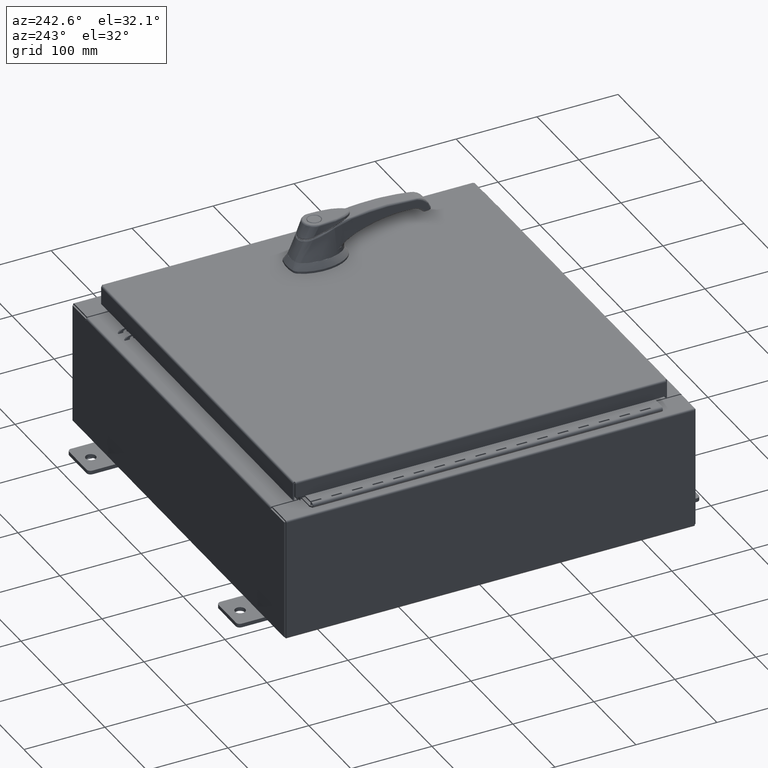
[diagram: clean part render]
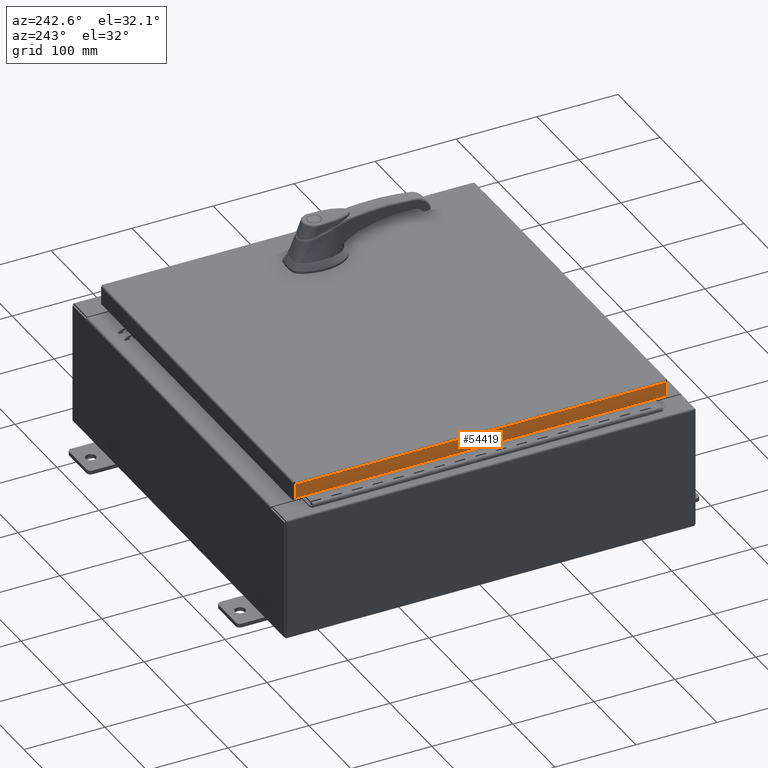
[diagram: same view with one face highlighted and labeled with its STEP entity id]
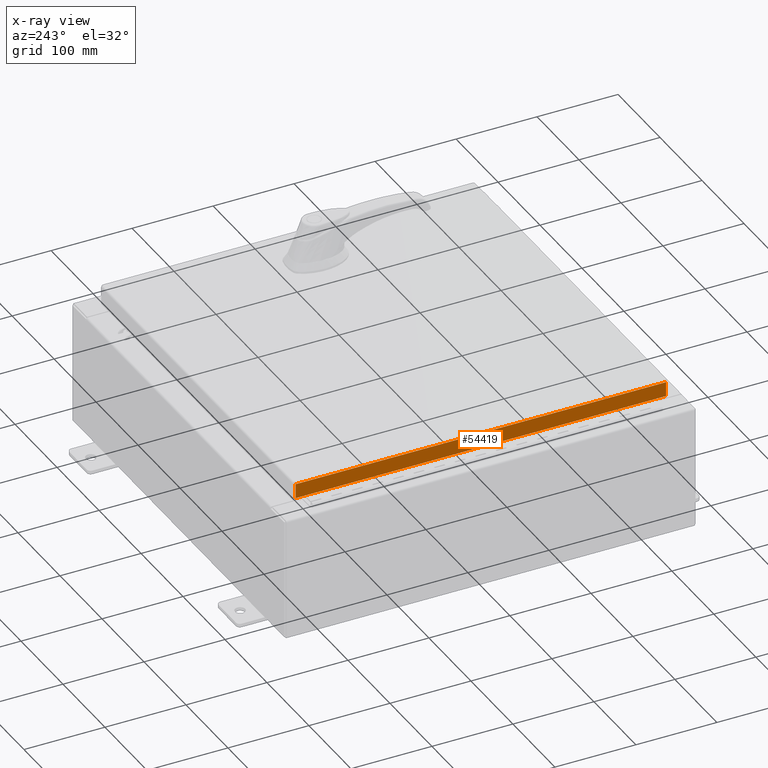
[diagram: x-ray of the same camera — body ghosted, the highlighted face saturated]
A machine part, auxiliary view. The second image highlights one B-rep face of the part: STEP entity #54419.
The next image is the same camera in x-ray: the body ghosted, the highlighted face saturated — about 0% of this face is hidden behind the body in this view.
In plain terms, the highlighted planar face has unit normal (1, 0, -0).
Its self-contained STEP definition (entity closure, byte-faithful):
#946 = LINE ( 'NONE', #69681, #20729 ) ;
#1177 = DIRECTION ( 'NONE',  ( -3.034122441942816500E-015, 0.0000000000000000000, -1.000000000000000000 ) ) ;
#3705 = CARTESIAN_POINT ( 'NONE',  ( -9.077999999999999400, 9.005157864376268900, 9.068725845758093100E-014 ) ) ;
#7907 = EDGE_CURVE ( 'NONE', #100922, #86004, #78233, .T. ) ;
#10510 = ORIENTED_EDGE ( 'NONE', *, *, #78984, .F. ) ;
#15582 = CARTESIAN_POINT ( 'NONE',  ( -9.078000000000001200, 9.005157864376274200, -0.7949999999999974900 ) ) ;
#17190 = ORIENTED_EDGE ( 'NONE', *, *, #104471, .F. ) ;
#18864 = VECTOR ( 'NONE', #89294, 39.37007874015748100 ) ;
#20729 = VECTOR ( 'NONE', #78190, 39.37007874015748100 ) ;
#24392 = VECTOR ( 'NONE', #68835, 39.37007874015748100 ) ;
#26626 = VERTEX_POINT ( 'NONE', #50107 ) ;
#26808 = CARTESIAN_POINT ( 'NONE',  ( -9.077999999999999400, -9.005157864376267100, -0.07469999999999976700 ) ) ;
#30580 = AXIS2_PLACEMENT_3D ( 'NONE', #93017, #51711, #1177 ) ;
#43207 = PLANE ( 'NONE',  #30580 ) ;
#44599 = VERTEX_POINT ( 'NONE', #49834 ) ;
#49834 = CARTESIAN_POINT ( 'NONE',  ( -9.077999999999999400, -9.005157864376268900, -0.08770000000000007000 ) ) ;
#50107 = CARTESIAN_POINT ( 'NONE',  ( -9.078000000000001200, -9.005157864376261800, -0.7949999999999996000 ) ) ;
#51492 = CARTESIAN_POINT ( 'NONE',  ( -9.077999999999999400, 9.005157864376270600, -0.08770000000000004200 ) ) ;
#51711 = DIRECTION ( 'NONE',  ( 1.000000000000000000, 3.645815397208356400E-031, -3.034122441942816500E-015 ) ) ;
#54419 = ADVANCED_FACE ( 'NONE', ( #109002 ), #43207, .F. ) ;
#58440 = VECTOR ( 'NONE', #62662, 39.37007874015748100 ) ;
#62662 = DIRECTION ( 'NONE',  ( -3.034122441942816500E-015, 6.982962677686267500E-015, -1.000000000000000000 ) ) ;
#63580 = EDGE_LOOP ( 'NONE', ( #84987, #87117, #17190, #10510 ) ) ;
#64470 = EDGE_CURVE ( 'NONE', #100922, #44599, #946, .T. ) ;
#68835 = DIRECTION ( 'NONE',  ( -3.034122441942816500E-015, 6.982962677686267500E-015, -1.000000000000000000 ) ) ;
#69681 = CARTESIAN_POINT ( 'NONE',  ( -9.077999999999999400, -9.093999999999999400, -0.08770000000000004200 ) ) ;
#78190 = DIRECTION ( 'NONE',  ( 3.645815397208356400E-031, -1.000000000000000000, -1.074717912135910100E-045 ) ) ;
#78233 = LINE ( 'NONE', #3705, #58440 ) ;
#78984 = EDGE_CURVE ( 'NONE', #44599, #26626, #89055, .T. ) ;
#80831 = CARTESIAN_POINT ( 'NONE',  ( -9.078000000000001200, -9.093999999999999400, -0.7949999999999997100 ) ) ;
#84987 = ORIENTED_EDGE ( 'NONE', *, *, #64470, .F. ) ;
#86004 = VERTEX_POINT ( 'NONE', #15582 ) ;
#86145 = LINE ( 'NONE', #80831, #18864 ) ;
#87117 = ORIENTED_EDGE ( 'NONE', *, *, #7907, .T. ) ;
#89055 = LINE ( 'NONE', #26808, #24392 ) ;
#89294 = DIRECTION ( 'NONE',  ( 4.379057701015054300E-047, 1.000000000000000000, 1.201604571657912400E-016 ) ) ;
#93017 = CARTESIAN_POINT ( 'NONE',  ( -9.077999999999999400, -3.309671217585745400E-030, 2.780457718396846700E-014 ) ) ;
#100922 = VERTEX_POINT ( 'NONE', #51492 ) ;
#104471 = EDGE_CURVE ( 'NONE', #26626, #86004, #86145, .T. ) ;
#109002 = FACE_OUTER_BOUND ( 'NONE', #63580, .T. ) ;